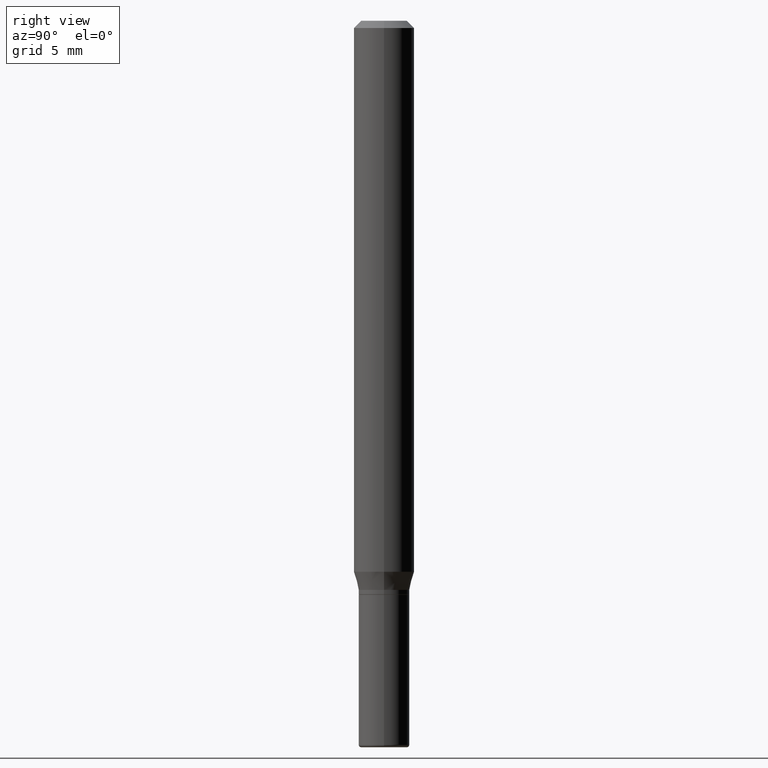
[diagram: clean part render]
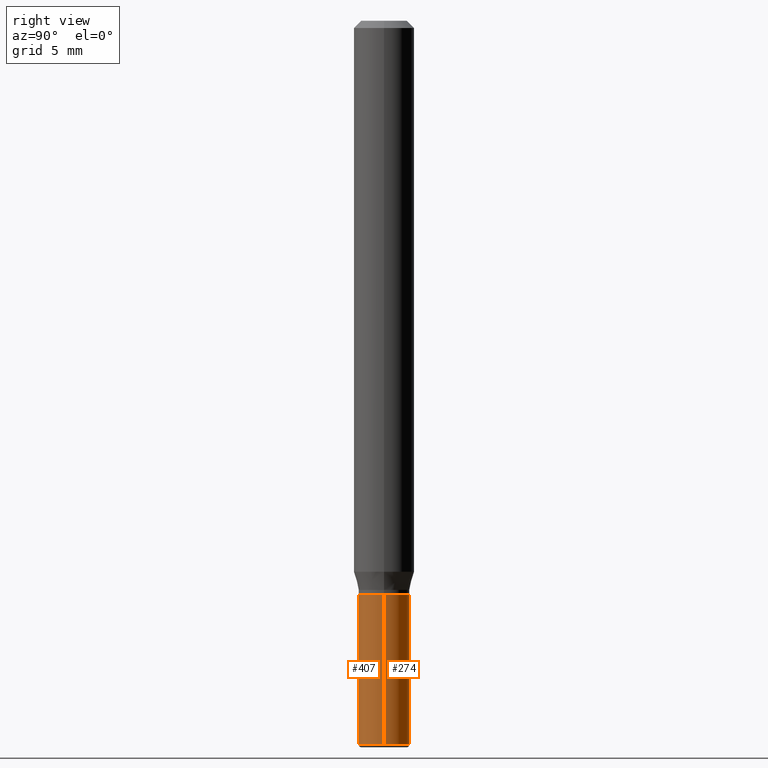
[diagram: same view with one multi-face feature highlighted, each face labeled with its STEP entity id]
A machine part, right view. The highlighted faces form ONE feature: a constant-radius fillet chain: 2 tangent blend faces with common blend radius 1.3335 mm. The faces share edges in the B-rep.
Their STEP definitions:
[1] entity #407 (Cylinder):
#6 = CARTESIAN_POINT ( 'NONE',  ( 0.05250000000000008826, -3.666055405785296038E-16, 2.559992807292870916E-30 ) ) ;
#7 = EDGE_CURVE ( 'NONE', #388, #237, #25, .T. ) ;
#25 = CIRCLE ( 'NONE', #437, 0.05249999999999999806 ) ;
#29 = FACE_OUTER_BOUND ( 'NONE', #428, .T. ) ;
#46 = EDGE_CURVE ( 'NONE', #359, #388, #455, .T. ) ;
#56 = EDGE_CURVE ( 'NONE', #359, #64, #454, .T. ) ;
#64 = VERTEX_POINT ( 'NONE', #245 ) ;
#82 = AXIS2_PLACEMENT_3D ( 'NONE', #499, #185, #345 ) ;
#92 = CARTESIAN_POINT ( 'NONE',  ( 3.655975865246779122E-29, -5.219764601570503141E-15, -1.495000000000000107 ) ) ;
#133 = DIRECTION ( 'NONE',  ( -2.445468806185136597E-29, 3.491481338843145583E-15, 1.000000000000000000 ) ) ;
#185 = DIRECTION ( 'NONE',  ( -2.445468806185136597E-29, 3.491481338843145583E-15, 1.000000000000000000 ) ) ;
#188 = ORIENTED_EDGE ( 'NONE', *, *, #236, .T. ) ;
#197 = LINE ( 'NONE', #6, #335 ) ;
#206 = DIRECTION ( 'NONE',  ( 1.000000000000000000, -6.982962677686263555E-15, 0.000000000000000000 ) ) ;
#228 = AXIS2_PLACEMENT_3D ( 'NONE', #92, #247, #206 ) ;
#236 = EDGE_CURVE ( 'NONE', #64, #237, #197, .T. ) ;
#237 = VERTEX_POINT ( 'NONE', #487 ) ;
#245 = CARTESIAN_POINT ( 'NONE',  ( 0.05250000000000017153, -5.586370142149033090E-15, -1.495000000000000107 ) ) ;
#247 = DIRECTION ( 'NONE',  ( -2.445468806185136597E-29, 3.491481338843145583E-15, 1.000000000000000000 ) ) ;
#252 = ORIENTED_EDGE ( 'NONE', *, *, #46, .F. ) ;
#263 = VECTOR ( 'NONE', #333, 39.37007874015748143 ) ;
#275 = ORIENTED_EDGE ( 'NONE', *, *, #7, .F. ) ;
#293 = DIRECTION ( 'NONE',  ( 1.000000000000000000, -6.982962677686258822E-15, 0.000000000000000000 ) ) ;
#313 = DIRECTION ( 'NONE',  ( -2.445468806185136877E-29, 3.491481338843145188E-15, 1.000000000000000000 ) ) ;
#326 = CARTESIAN_POINT ( 'NONE',  ( -0.05250000000000008826, 3.730349362740532247E-16, -2.582440922383829865E-30 ) ) ;
#333 = DIRECTION ( 'NONE',  ( -2.445468806185136877E-29, 3.491481338843145188E-15, 1.000000000000000000 ) ) ;
#335 = VECTOR ( 'NONE', #313, 39.37007874015748143 ) ;
#341 = CYLINDRICAL_SURFACE ( 'NONE', #82, 0.05250000000000008826 ) ;
#345 = DIRECTION ( 'NONE',  ( 1.000000000000000000, -6.982962677686266711E-15, 4.876176775795936353E-29 ) ) ;
#359 = VERTEX_POINT ( 'NONE', #456 ) ;
#379 = CARTESIAN_POINT ( 'NONE',  ( -0.05249999999999999806, -4.305550057775762412E-15, -1.185000000000000053 ) ) ;
#388 = VERTEX_POINT ( 'NONE', #379 ) ;
#407 = ADVANCED_FACE ( 'NONE', ( #29 ), #341, .T. ) ;
#428 = EDGE_LOOP ( 'NONE', ( #252, #483, #188, #275 ) ) ;
#437 = AXIS2_PLACEMENT_3D ( 'NONE', #467, #133, #293 ) ;
#454 = CIRCLE ( 'NONE', #228, 0.05250000000000017153 ) ;
#455 = LINE ( 'NONE', #326, #263 ) ;
#456 = CARTESIAN_POINT ( 'NONE',  ( -0.05250000000000017153, -4.305550057775760834E-15, -1.495000000000000107 ) ) ;
#467 = CARTESIAN_POINT ( 'NONE',  ( 2.897880535329386822E-29, -4.137405386529127541E-15, -1.185000000000000053 ) ) ;
#483 = ORIENTED_EDGE ( 'NONE', *, *, #56, .T. ) ;
#487 = CARTESIAN_POINT ( 'NONE',  ( 0.05249999999999999806, -4.504010927107656701E-15, -1.185000000000000053 ) ) ;
#499 = CARTESIAN_POINT ( 'NONE',  ( 0.000000000000000000, 0.000000000000000000, 0.000000000000000000 ) ) ;
[2] entity #274 (Cylinder):
#6 = CARTESIAN_POINT ( 'NONE',  ( 0.05250000000000008826, -3.666055405785296038E-16, 2.559992807292870916E-30 ) ) ;
#42 = DIRECTION ( 'NONE',  ( 1.000000000000000000, -6.982962677686258822E-15, 0.000000000000000000 ) ) ;
#46 = EDGE_CURVE ( 'NONE', #359, #388, #455, .T. ) ;
#50 = DIRECTION ( 'NONE',  ( -2.445468806185136597E-29, 3.491481338843145583E-15, 1.000000000000000000 ) ) ;
#64 = VERTEX_POINT ( 'NONE', #245 ) ;
#91 = AXIS2_PLACEMENT_3D ( 'NONE', #329, #184, #342 ) ;
#99 = CIRCLE ( 'NONE', #296, 0.05249999999999999806 ) ;
#117 = CARTESIAN_POINT ( 'NONE',  ( 2.897880535329386822E-29, -4.137405386529127541E-15, -1.185000000000000053 ) ) ;
#153 = EDGE_LOOP ( 'NONE', ( #163, #311, #273, #231 ) ) ;
#163 = ORIENTED_EDGE ( 'NONE', *, *, #352, .T. ) ;
#184 = DIRECTION ( 'NONE',  ( -2.445468806185136597E-29, 3.491481338843145583E-15, 1.000000000000000000 ) ) ;
#197 = LINE ( 'NONE', #6, #335 ) ;
#200 = AXIS2_PLACEMENT_3D ( 'NONE', #325, #50, #490 ) ;
#231 = ORIENTED_EDGE ( 'NONE', *, *, #236, .F. ) ;
#236 = EDGE_CURVE ( 'NONE', #64, #237, #197, .T. ) ;
#237 = VERTEX_POINT ( 'NONE', #487 ) ;
#243 = EDGE_CURVE ( 'NONE', #237, #388, #99, .T. ) ;
#245 = CARTESIAN_POINT ( 'NONE',  ( 0.05250000000000017153, -5.586370142149033090E-15, -1.495000000000000107 ) ) ;
#263 = VECTOR ( 'NONE', #333, 39.37007874015748143 ) ;
#273 = ORIENTED_EDGE ( 'NONE', *, *, #243, .F. ) ;
#274 = ADVANCED_FACE ( 'NONE', ( #303 ), #354, .T. ) ;
#278 = DIRECTION ( 'NONE',  ( -2.445468806185136597E-29, 3.491481338843145583E-15, 1.000000000000000000 ) ) ;
#296 = AXIS2_PLACEMENT_3D ( 'NONE', #117, #278, #42 ) ;
#303 = FACE_OUTER_BOUND ( 'NONE', #153, .T. ) ;
#311 = ORIENTED_EDGE ( 'NONE', *, *, #46, .T. ) ;
#313 = DIRECTION ( 'NONE',  ( -2.445468806185136877E-29, 3.491481338843145188E-15, 1.000000000000000000 ) ) ;
#325 = CARTESIAN_POINT ( 'NONE',  ( 3.655975865246779122E-29, -5.219764601570503141E-15, -1.495000000000000107 ) ) ;
#326 = CARTESIAN_POINT ( 'NONE',  ( -0.05250000000000008826, 3.730349362740532247E-16, -2.582440922383829865E-30 ) ) ;
#329 = CARTESIAN_POINT ( 'NONE',  ( 0.000000000000000000, 0.000000000000000000, 0.000000000000000000 ) ) ;
#333 = DIRECTION ( 'NONE',  ( -2.445468806185136877E-29, 3.491481338843145188E-15, 1.000000000000000000 ) ) ;
#335 = VECTOR ( 'NONE', #313, 39.37007874015748143 ) ;
#342 = DIRECTION ( 'NONE',  ( 1.000000000000000000, -6.982962677686266711E-15, 4.876176775795936353E-29 ) ) ;
#352 = EDGE_CURVE ( 'NONE', #64, #359, #504, .T. ) ;
#354 = CYLINDRICAL_SURFACE ( 'NONE', #91, 0.05250000000000008826 ) ;
#359 = VERTEX_POINT ( 'NONE', #456 ) ;
#379 = CARTESIAN_POINT ( 'NONE',  ( -0.05249999999999999806, -4.305550057775762412E-15, -1.185000000000000053 ) ) ;
#388 = VERTEX_POINT ( 'NONE', #379 ) ;
#455 = LINE ( 'NONE', #326, #263 ) ;
#456 = CARTESIAN_POINT ( 'NONE',  ( -0.05250000000000017153, -4.305550057775760834E-15, -1.495000000000000107 ) ) ;
#487 = CARTESIAN_POINT ( 'NONE',  ( 0.05249999999999999806, -4.504010927107656701E-15, -1.185000000000000053 ) ) ;
#490 = DIRECTION ( 'NONE',  ( 1.000000000000000000, -6.982962677686263555E-15, 0.000000000000000000 ) ) ;
#504 = CIRCLE ( 'NONE', #200, 0.05250000000000017153 ) ;